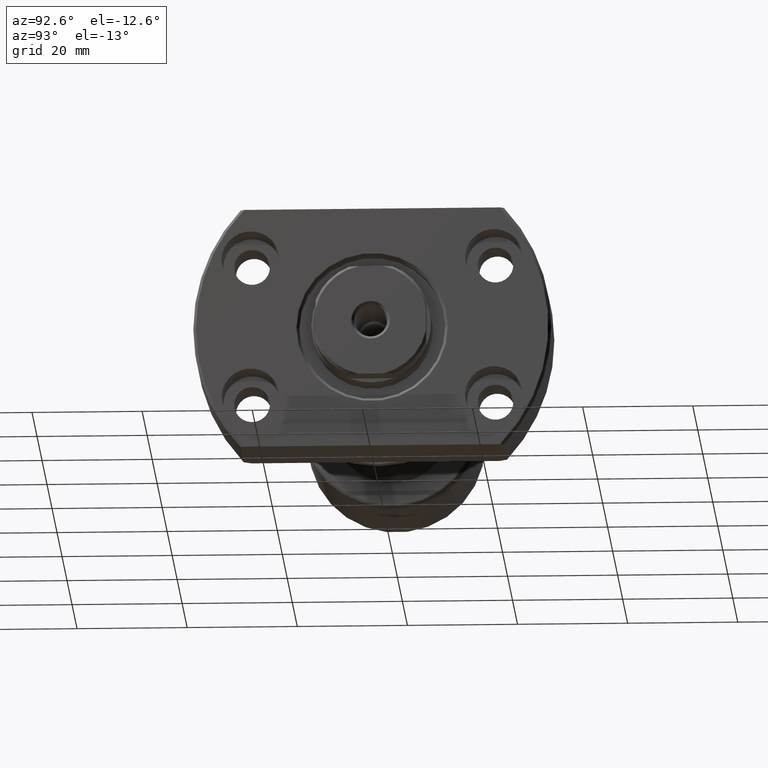
[diagram: clean part render]
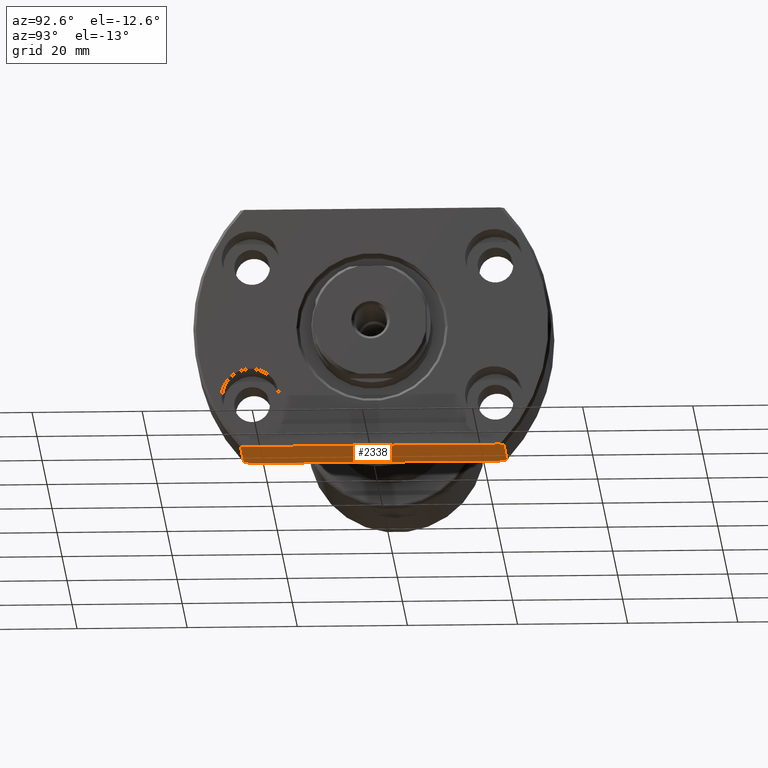
[diagram: same view with one face highlighted and labeled with its STEP entity id]
A machine part, auxiliary view. The second image highlights one B-rep face of the part: STEP entity #2338.
In plain terms, the highlighted planar face has unit normal (0, 0, 1).
Its self-contained STEP definition (entity closure, byte-faithful):
#1 = B_SPLINE_CURVE_WITH_KNOTS ( 'NONE', 3,
 ( #3040, #1367, #811, #1797 ),
 .UNSPECIFIED., .F., .F.,
 ( 4, 4 ),
 ( 0.09020251661949907351, 0.09105413011805363332 ),
 .UNSPECIFIED. ) ;
#4 = ORIENTED_EDGE ( 'NONE', *, *, #606, .F. ) ;
#94 = CARTESIAN_POINT ( 'NONE',  ( 13.50000000000000178, 22.54440063519089676, -22.00000000000000355 ) ) ;
#108 = CARTESIAN_POINT ( 'NONE',  ( 27.50000000000000355, 23.23790007724450035, -22.00000000000000355 ) ) ;
#176 = EDGE_CURVE ( 'NONE', #1973, #1387, #2823, .T. ) ;
#186 = CARTESIAN_POINT ( 'NONE',  ( 27.16738888422669262, -23.69433349186108018, -22.00000000000000355 ) ) ;
#232 = PLANE ( 'NONE',  #1443 ) ;
#325 = ORIENTED_EDGE ( 'NONE', *, *, #176, .F. ) ;
#337 = CARTESIAN_POINT ( 'NONE',  ( 14.16368991444089964, 23.46483775540317751, -22.00000000000000355 ) ) ;
#488 = FACE_OUTER_BOUND ( 'NONE', #2809, .T. ) ;
#514 = VECTOR ( 'NONE', #1204, 1000.000000000000000 ) ;
#517 = DIRECTION ( 'NONE',  ( 1.000000000000000000, 0.000000000000000000, -0.000000000000000000 ) ) ;
#524 = CARTESIAN_POINT ( 'NONE',  ( -2.428612866367529932E-13, 23.92174742781206120, -22.00000000000000000 ) ) ;
#560 = CARTESIAN_POINT ( 'NONE',  ( 13.50000000000000178, 22.54440063519089676, -22.00000000000000355 ) ) ;
#573 = EDGE_CURVE ( 'NONE', #1387, #2961, #1639, .T. ) ;
#606 = EDGE_CURVE ( 'NONE', #1954, #1579, #3218, .T. ) ;
#683 = CARTESIAN_POINT ( 'NONE',  ( 27.50000000000000355, -23.23790007724450035, -22.00000000000000355 ) ) ;
#710 = DIRECTION ( 'NONE',  ( 1.335978326342566810E-17, -1.000000000000000000, 0.000000000000000000 ) ) ;
#811 = CARTESIAN_POINT ( 'NONE',  ( 27.16744843440999446, 23.69425258719626726, -22.00000000000000355 ) ) ;
#884 = DIRECTION ( 'NONE',  ( -1.335978326342566810E-17, 1.000000000000000000, -0.000000000000000000 ) ) ;
#924 = CARTESIAN_POINT ( 'NONE',  ( 13.50000000000001421, -22.54440063519093940, -22.00000000000000355 ) ) ;
#936 = VERTEX_POINT ( 'NONE', #3167 ) ;
#980 = VERTEX_POINT ( 'NONE', #924 ) ;
#1066 = CARTESIAN_POINT ( 'NONE',  ( 13.82998096711740033, -23.00546414414808538, -22.00000000000000355 ) ) ;
#1204 = DIRECTION ( 'NONE',  ( 1.000000000000000000, -2.886466111666351885E-14, -0.000000000000000000 ) ) ;
#1259 = VECTOR ( 'NONE', #884, 1000.000000000000000 ) ;
#1306 = CARTESIAN_POINT ( 'NONE',  ( 13.83023180395318619, 23.00581462409453692, -22.00000000000000355 ) ) ;
#1363 = CARTESIAN_POINT ( 'NONE',  ( 27.00000000000007105, -23.92174742781127605, -22.00000000000000355 ) ) ;
#1367 = CARTESIAN_POINT ( 'NONE',  ( 27.33413051841648311, 23.46631242917946025, -22.00000000000000355 ) ) ;
#1387 = VERTEX_POINT ( 'NONE', #1869 ) ;
#1443 = AXIS2_PLACEMENT_3D ( 'NONE', #1994, #2442, #517 ) ;
#1445 = VECTOR ( 'NONE', #710, 1000.000000000000000 ) ;
#1579 = VERTEX_POINT ( 'NONE', #94 ) ;
#1639 = LINE ( 'NONE', #2390, #1259 ) ;
#1647 = CARTESIAN_POINT ( 'NONE',  ( 27.00000000000007105, -23.92174742781127605, -22.00000000000000355 ) ) ;
#1676 = EDGE_CURVE ( 'NONE', #2961, #2021, #1, .T. ) ;
#1696 = LINE ( 'NONE', #1761, #1445 ) ;
#1735 = ORIENTED_EDGE ( 'NONE', *, *, #2306, .F. ) ;
#1761 = CARTESIAN_POINT ( 'NONE',  ( 13.50000000000000178, -19.99999999999999645, -22.00000000000000355 ) ) ;
#1781 = CARTESIAN_POINT ( 'NONE',  ( 27.00000000000007105, 23.92174742781127961, -22.00000000000000000 ) ) ;
#1797 = CARTESIAN_POINT ( 'NONE',  ( 27.00000000000007105, 23.92174742781127961, -22.00000000000000000 ) ) ;
#1852 = EDGE_CURVE ( 'NONE', #1954, #2021, #2707, .T. ) ;
#1869 = CARTESIAN_POINT ( 'NONE',  ( 27.50000000000000355, -23.23790007724450035, -22.00000000000000355 ) ) ;
#1883 = CARTESIAN_POINT ( 'NONE',  ( 27.33407032320117125, -23.46639532164750364, -22.00000000000000355 ) ) ;
#1912 = ORIENTED_EDGE ( 'NONE', *, *, #2166, .F. ) ;
#1954 = VERTEX_POINT ( 'NONE', #1998 ) ;
#1972 = ORIENTED_EDGE ( 'NONE', *, *, #2056, .F. ) ;
#1973 = VERTEX_POINT ( 'NONE', #1363 ) ;
#1994 = CARTESIAN_POINT ( 'NONE',  ( -2.428612866367529932E-13, 23.92174742781206831, -22.00000000000000355 ) ) ;
#1998 = CARTESIAN_POINT ( 'NONE',  ( 14.49999999999999289, 23.92174742781164198, -22.00000000000000000 ) ) ;
#2021 = VERTEX_POINT ( 'NONE', #1781 ) ;
#2024 = ORIENTED_EDGE ( 'NONE', *, *, #1676, .F. ) ;
#2056 = EDGE_CURVE ( 'NONE', #980, #936, #2256, .T. ) ;
#2166 = EDGE_CURVE ( 'NONE', #936, #1973, #3137, .T. ) ;
#2256 = B_SPLINE_CURVE_WITH_KNOTS ( 'NONE', 3,
 ( #2801, #1066, #2523, #2569 ),
 .UNSPECIFIED., .F., .F.,
 ( 4, 4 ),
 ( 0.08934887722955493772, 0.09106053602301761307 ),
 .UNSPECIFIED. ) ;
#2306 = EDGE_CURVE ( 'NONE', #1579, #980, #1696, .T. ) ;
#2338 = ADVANCED_FACE ( 'NONE', ( #488 ), #232, .F. ) ;
#2373 = VECTOR ( 'NONE', #2988, 1000.000000000000000 ) ;
#2390 = CARTESIAN_POINT ( 'NONE',  ( 27.50000000000000355, -32.00000000000000000, -22.00000000000000355 ) ) ;
#2442 = DIRECTION ( 'NONE',  ( 0.000000000000000000, 0.000000000000000000, 1.000000000000000000 ) ) ;
#2523 = CARTESIAN_POINT ( 'NONE',  ( 14.16344437228347886, -23.46450416271139261, -22.00000000000000355 ) ) ;
#2559 = CARTESIAN_POINT ( 'NONE',  ( 14.49999999999999289, 23.92174742781164198, -22.00000000000000000 ) ) ;
#2569 = CARTESIAN_POINT ( 'NONE',  ( 14.49999999999999289, -23.92174742781091368, -22.00000000000000355 ) ) ;
#2650 = ORIENTED_EDGE ( 'NONE', *, *, #1852, .T. ) ;
#2663 = ORIENTED_EDGE ( 'NONE', *, *, #573, .F. ) ;
#2707 = LINE ( 'NONE', #524, #2373 ) ;
#2801 = CARTESIAN_POINT ( 'NONE',  ( 13.50000000000001421, -22.54440063519093940, -22.00000000000000355 ) ) ;
#2809 = EDGE_LOOP ( 'NONE', ( #2650, #2024, #2663, #325, #1912, #1972, #1735, #4 ) ) ;
#2823 = B_SPLINE_CURVE_WITH_KNOTS ( 'NONE', 3,
 ( #1647, #186, #1883, #683 ),
 .UNSPECIFIED., .F., .F.,
 ( 4, 4 ),
 ( 0.03779112510166890426, 0.03863931077161743971 ),
 .UNSPECIFIED. ) ;
#2961 = VERTEX_POINT ( 'NONE', #108 ) ;
#2988 = DIRECTION ( 'NONE',  ( 1.000000000000000000, -2.886466111666351885E-14, -0.000000000000000000 ) ) ;
#3040 = CARTESIAN_POINT ( 'NONE',  ( 27.50000000000000355, 23.23790007724450035, -22.00000000000000355 ) ) ;
#3137 = LINE ( 'NONE', #3168, #514 ) ;
#3167 = CARTESIAN_POINT ( 'NONE',  ( 14.49999999999999289, -23.92174742781091368, -22.00000000000000355 ) ) ;
#3168 = CARTESIAN_POINT ( 'NONE',  ( -1.623701173514291440E-12, -23.92174742781049446, -22.00000000000000355 ) ) ;
#3218 = B_SPLINE_CURVE_WITH_KNOTS ( 'NONE', 3,
 ( #2559, #337, #1306, #560 ),
 .UNSPECIFIED., .F., .F.,
 ( 4, 4 ),
 ( 0.03779752499755564821, 0.03950166028446427946 ),
 .UNSPECIFIED. ) ;